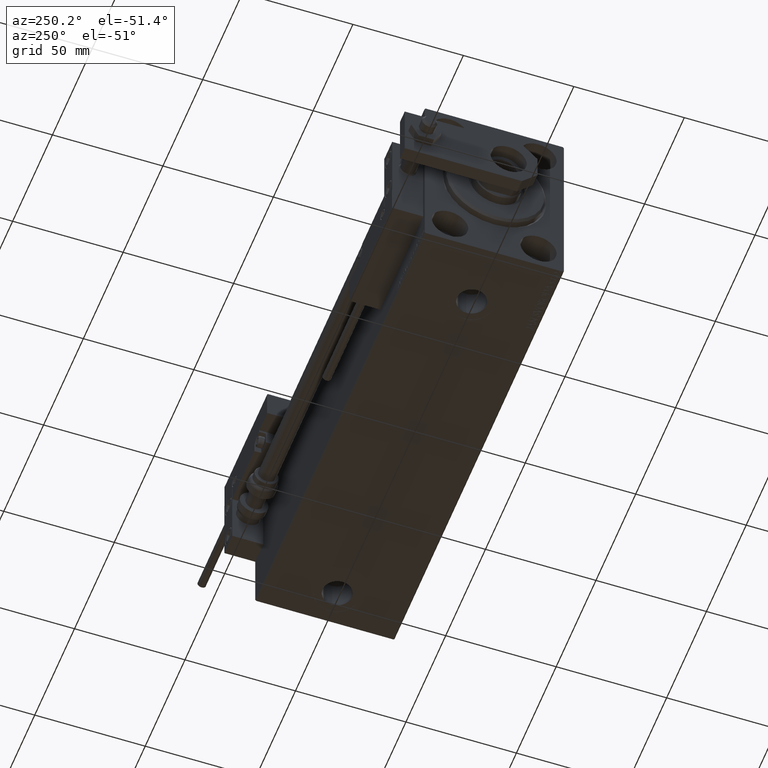
[diagram: clean part render]
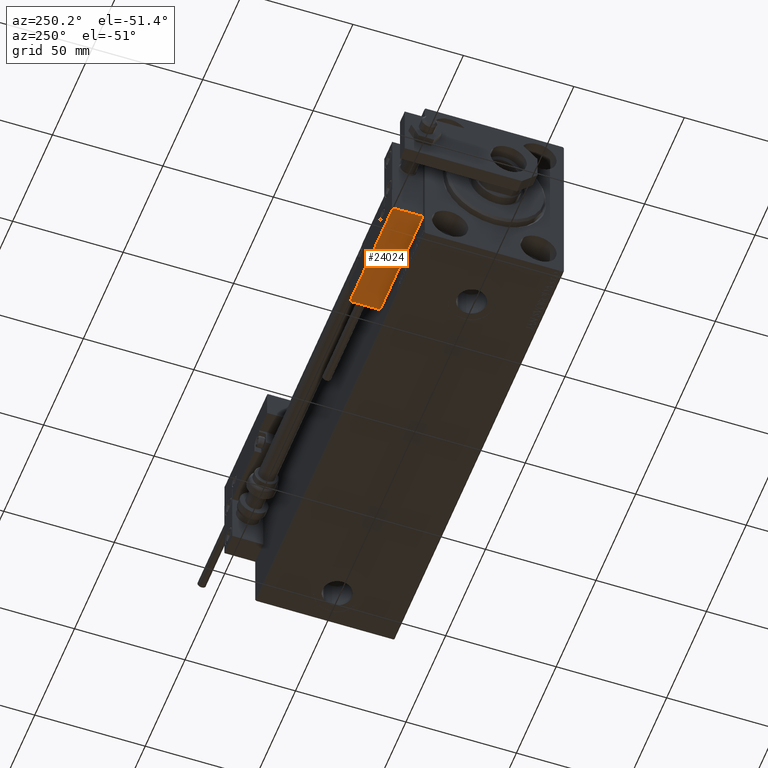
[diagram: same view with one face highlighted and labeled with its STEP entity id]
A machine part, auxiliary view. The second image highlights one B-rep face of the part: STEP entity #24024.
In plain terms, the highlighted planar face has unit normal (0, 0, 1).
Its self-contained STEP definition (entity closure, byte-faithful):
#349 = CARTESIAN_POINT ( 'NONE',  ( 27.00000000000006395, 20.00000000000001776, 14.00000000000000000 ) ) ;
#769 = CARTESIAN_POINT ( 'NONE',  ( -26.99999999999993605, 20.00000000000002132, 14.00000000000000000 ) ) ;
#1962 = VECTOR ( 'NONE', #48401, 1000.000000000000000 ) ;
#2593 = CARTESIAN_POINT ( 'NONE',  ( 27.00000000000006395, 20.00000000000001776, 0.000000000000000000 ) ) ;
#3925 = CARTESIAN_POINT ( 'NONE',  ( 27.00000000000006395, 20.00000000000001776, 0.000000000000000000 ) ) ;
#4685 = DIRECTION ( 'NONE',  ( -0.000000000000000000, -0.000000000000000000, -1.000000000000000000 ) ) ;
#5133 = LINE ( 'NONE', #27814, #1962 ) ;
#7021 = DIRECTION ( 'NONE',  ( -1.000000000000000000, 6.424901762877062263E-17, 0.000000000000000000 ) ) ;
#8085 = VERTEX_POINT ( 'NONE', #27427 ) ;
#8613 = ORIENTED_EDGE ( 'NONE', *, *, #39242, .T. ) ;
#11305 = CARTESIAN_POINT ( 'NONE',  ( -26.99999999999993605, 20.00000000000002132, 0.000000000000000000 ) ) ;
#11840 = DIRECTION ( 'NONE',  ( 1.000000000000000000, -6.424901762877063495E-17, 0.000000000000000000 ) ) ;
#12253 = LINE ( 'NONE', #769, #21823 ) ;
#14831 = VERTEX_POINT ( 'NONE', #11305 ) ;
#16045 = ORIENTED_EDGE ( 'NONE', *, *, #43576, .T. ) ;
#16786 = PLANE ( 'NONE',  #44011 ) ;
#17900 = EDGE_LOOP ( 'NONE', ( #46510, #8613, #16045, #24671 ) ) ;
#18378 = CARTESIAN_POINT ( 'NONE',  ( 27.00000000000006395, 20.00000000000001776, 14.00000000000000000 ) ) ;
#18883 = DIRECTION ( 'NONE',  ( -0.000000000000000000, -0.000000000000000000, -1.000000000000000000 ) ) ;
#19648 = DIRECTION ( 'NONE',  ( -6.424901762877063495E-17, -1.000000000000000000, 0.000000000000000000 ) ) ;
#21823 = VECTOR ( 'NONE', #4685, 1000.000000000000000 ) ;
#22084 = VECTOR ( 'NONE', #18883, 1000.000000000000000 ) ;
#23005 = CARTESIAN_POINT ( 'NONE',  ( -26.99999999999993605, 20.00000000000002132, 13.70000000000000107 ) ) ;
#23709 = VECTOR ( 'NONE', #7021, 1000.000000000000000 ) ;
#24024 = ADVANCED_FACE ( 'NONE', ( #35781 ), #16786, .F. ) ;
#24671 = ORIENTED_EDGE ( 'NONE', *, *, #45146, .T. ) ;
#27427 = CARTESIAN_POINT ( 'NONE',  ( 27.00000000000006395, 20.00000000000001776, 13.70000000000000107 ) ) ;
#27814 = CARTESIAN_POINT ( 'NONE',  ( 27.00000000000006395, 20.00000000000001776, 13.70000000000000107 ) ) ;
#29781 = VERTEX_POINT ( 'NONE', #23005 ) ;
#35781 = FACE_OUTER_BOUND ( 'NONE', #17900, .T. ) ;
#36076 = EDGE_CURVE ( 'NONE', #29781, #14831, #12253, .T. ) ;
#39242 = EDGE_CURVE ( 'NONE', #29781, #8085, #5133, .T. ) ;
#43039 = VERTEX_POINT ( 'NONE', #3925 ) ;
#43576 = EDGE_CURVE ( 'NONE', #8085, #43039, #46488, .T. ) ;
#44011 = AXIS2_PLACEMENT_3D ( 'NONE', #349, #19648, #11840 ) ;
#45146 = EDGE_CURVE ( 'NONE', #43039, #14831, #46622, .T. ) ;
#46488 = LINE ( 'NONE', #18378, #22084 ) ;
#46510 = ORIENTED_EDGE ( 'NONE', *, *, #36076, .F. ) ;
#46622 = LINE ( 'NONE', #2593, #23709 ) ;
#48401 = DIRECTION ( 'NONE',  ( 1.000000000000000000, -6.424901762877063495E-17, -0.000000000000000000 ) ) ;